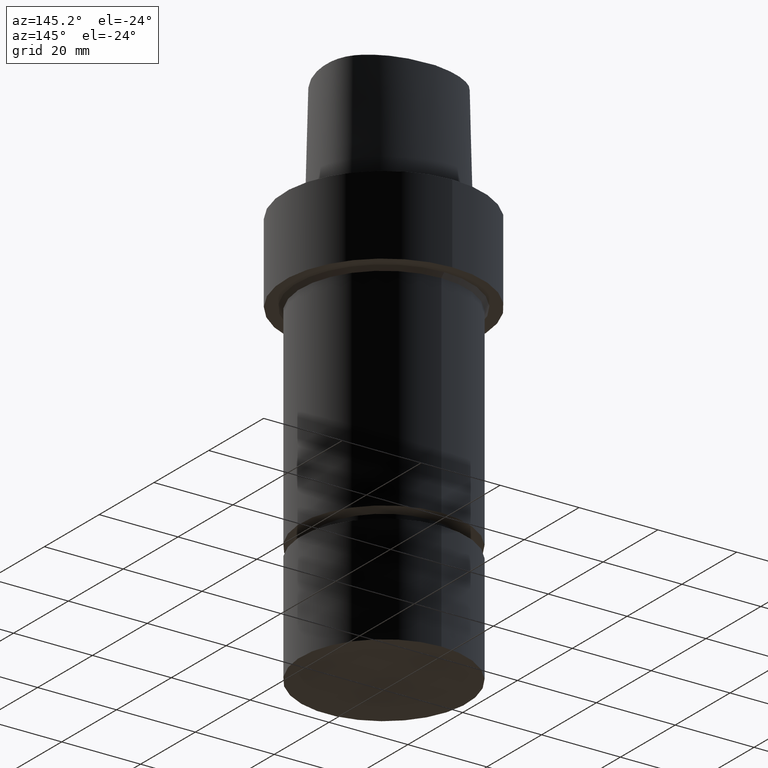
[diagram: clean part render]
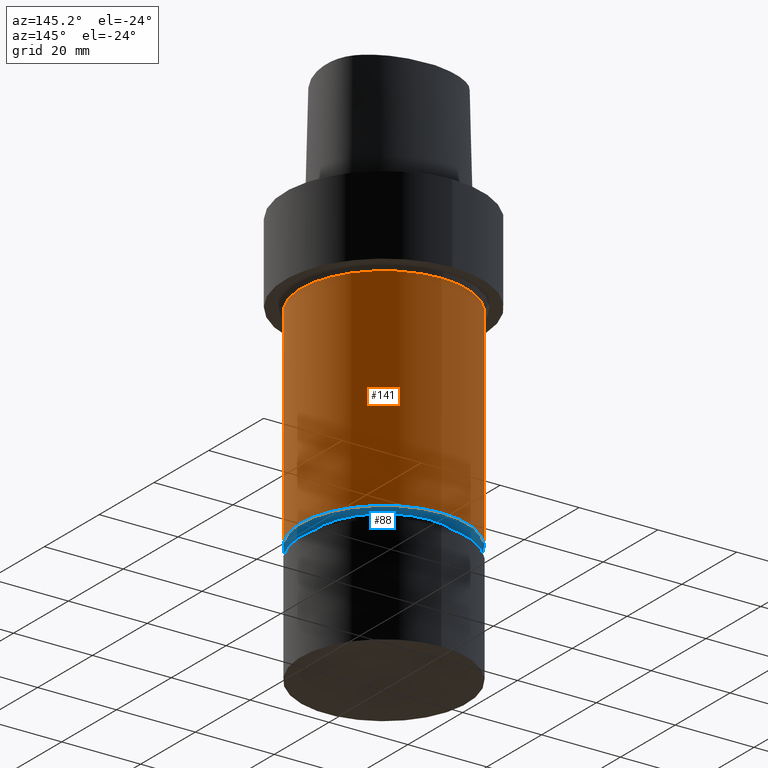
[diagram: same view with the hole feature highlighted: cylindrical wall and planar end face, labeled with their STEP entity ids]
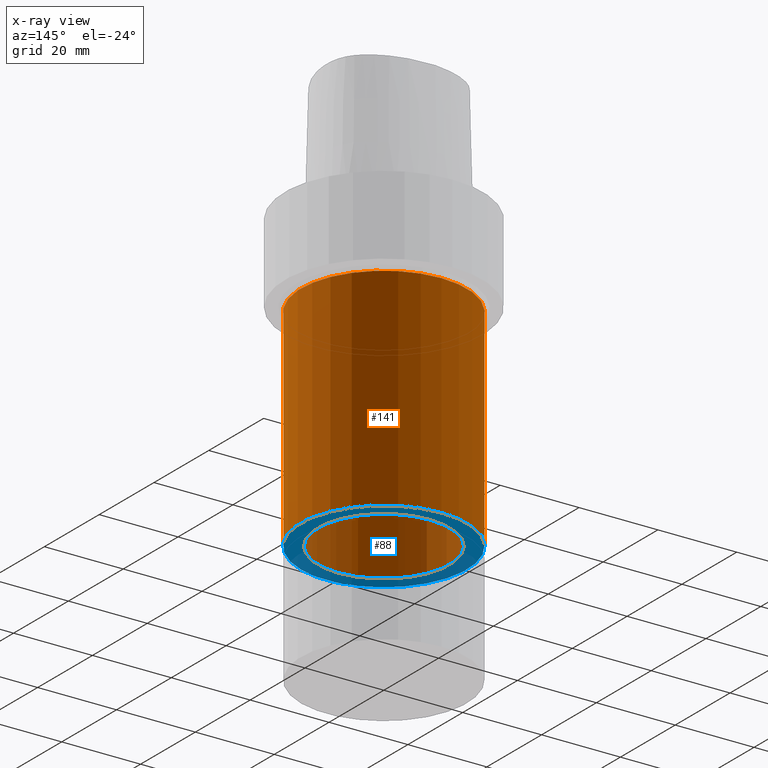
[diagram: x-ray of the same camera — body ghosted, the hole faces saturated]
A machine part, auxiliary view. The highlighted faces form one hole feature of diameter 42 mm: the cylindrical wall (entity #141, orange) and its adjacent planar end face (entity #88, blue) — they share a circular edge in the B-rep.
The next image is the same camera in x-ray (body ghosted, the hole faces saturated) — the bore reads through the body.
Wall:
#98=EDGE_CURVE('Unnamed[1]',#215,#215,#216,.T.);
#141=ADVANCED_FACE('Unnamed[1]',(#280,#281),#282,.T.);
#145=EDGE_CURVE('Unnamed[1]',#287,#287,#288,.T.);
#215=VERTEX_POINT('',#458);
#216=CIRCLE('',#459,21.0000000000003);
#280=FACE_BOUND('',#590,.T.);
#281=FACE_BOUND('',#591,.T.);
#282=CYLINDRICAL_SURFACE('',#592,21.0000000000003);
#287=VERTEX_POINT('',#599);
#288=CIRCLE('',#600,21.0000000000003);
#458=CARTESIAN_POINT('',(1.28587913910472E-015,21.0000000000003,-21.0));
#459=AXIS2_PLACEMENT_3D('',#1038,#1039,#1040);
#590=EDGE_LOOP('',(#1103));
#591=EDGE_LOOP('',(#1104));
#592=AXIS2_PLACEMENT_3D('',#1105,#1106,#1107);
#599=CARTESIAN_POINT('',(4.56180932682389E-015,21.0000000000003,-74.5));
#600=AXIS2_PLACEMENT_3D('',#1111,#1112,#1113);
#1038=CARTESIAN_POINT('',(1.28587913910472E-015,2.57175827820944E-015,-21.0));
#1039=DIRECTION('',(6.12323399573677E-017,1.22464679914735E-016,-1.0));
#1040=DIRECTION('',(-1.23259516440783E-032,1.0,1.22464679914735E-016));
#1103=ORIENTED_EDGE('',*,*,#145,.F.);
#1104=ORIENTED_EDGE('',*,*,#98,.T.);
#1105=CARTESIAN_POINT('',(2.9238442329643E-015,5.84768846592861E-015,-47.75));
#1106=DIRECTION('',(6.12323399573677E-017,1.22464679914735E-016,-1.0));
#1107=DIRECTION('',(-1.23259516440783E-032,1.0,1.22464679914735E-016));
#1111=CARTESIAN_POINT('',(4.56180932682389E-015,9.12361865364778E-015,-74.5));
#1112=DIRECTION('',(6.12323399573677E-017,1.22464679914735E-016,-1.0));
#1113=DIRECTION('',(-1.23259516440783E-032,1.0,1.22464679914735E-016));
End face:
#88=ADVANCED_FACE('Unnamed[1]',(#200,#201),#202,.T.);
#138=EDGE_CURVE('Unnamed[1]',#276,#276,#277,.T.);
#145=EDGE_CURVE('Unnamed[1]',#287,#287,#288,.T.);
#200=FACE_BOUND('',#439,.T.);
#201=FACE_OUTER_BOUND('',#440,.T.);
#202=PLANE('',#441);
#276=VERTEX_POINT('',#585);
#277=CIRCLE('',#586,16.7499999999907);
#287=VERTEX_POINT('',#599);
#288=CIRCLE('',#600,21.0000000000003);
#439=EDGE_LOOP('',(#1020));
#440=EDGE_LOOP('',(#1021));
#441=AXIS2_PLACEMENT_3D('',#1022,#1023,#1024);
#585=CARTESIAN_POINT('',(4.56180932682384E-015,16.7499999999907,-74.4999999999992));
#586=AXIS2_PLACEMENT_3D('',#1099,#1100,#1101);
#599=CARTESIAN_POINT('',(4.56180932682389E-015,21.0000000000003,-74.5));
#600=AXIS2_PLACEMENT_3D('',#1111,#1112,#1113);
#1020=ORIENTED_EDGE('',*,*,#138,.F.);
#1021=ORIENTED_EDGE('',*,*,#145,.T.);
#1022=CARTESIAN_POINT('',(4.56180932682387E-015,18.8749999999955,-74.4999999999996));
#1023=DIRECTION('',(6.12323399573677E-017,-1.77095252944558E-013,-1.0));
#1024=DIRECTION('',(1.08391295804064E-029,1.0,-1.77095252944558E-013));
#1099=CARTESIAN_POINT('',(4.56180932682384E-015,9.12361865364768E-015,-74.4999999999992));
#1100=DIRECTION('',(6.12323399573677E-017,1.22464679914735E-016,-1.0));
#1101=DIRECTION('',(-1.23259516440783E-032,1.0,1.22464679914735E-016));
#1111=CARTESIAN_POINT('',(4.56180932682389E-015,9.12361865364778E-015,-74.5));
#1112=DIRECTION('',(6.12323399573677E-017,1.22464679914735E-016,-1.0));
#1113=DIRECTION('',(-1.23259516440783E-032,1.0,1.22464679914735E-016));